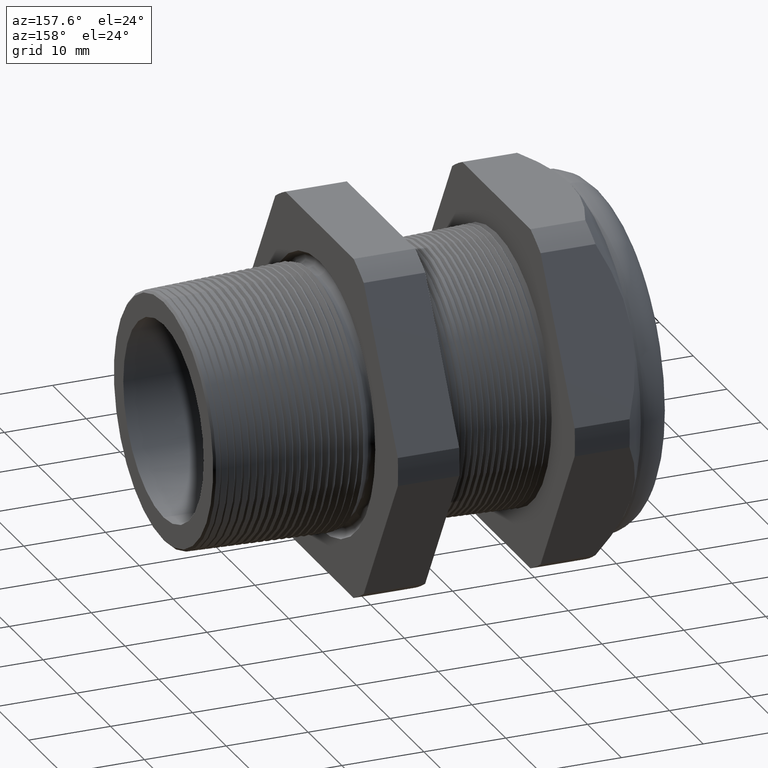
[diagram: clean part render]
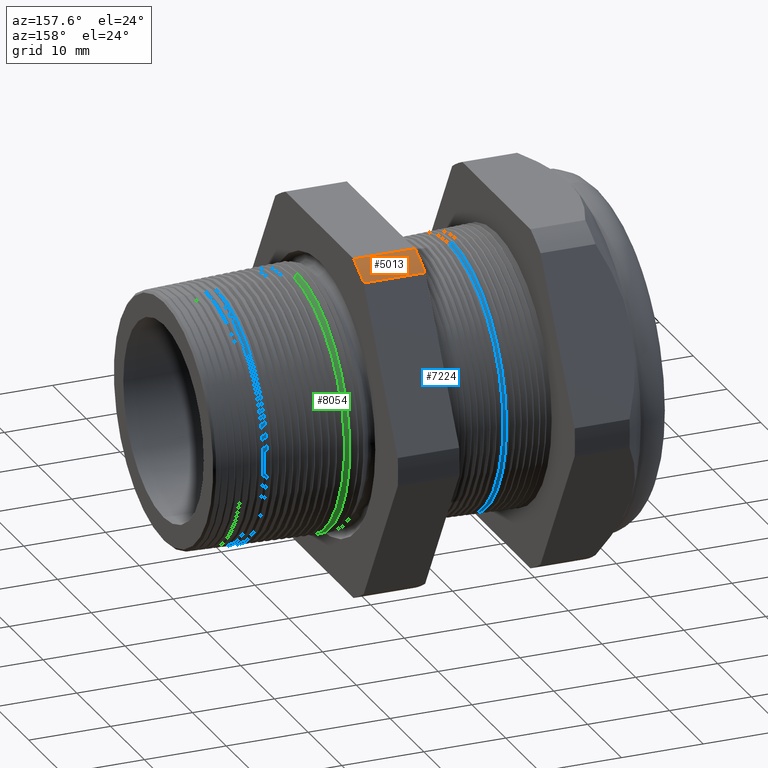
[diagram: same view with three faces highlighted in distinct colors, each labeled with its STEP entity id]
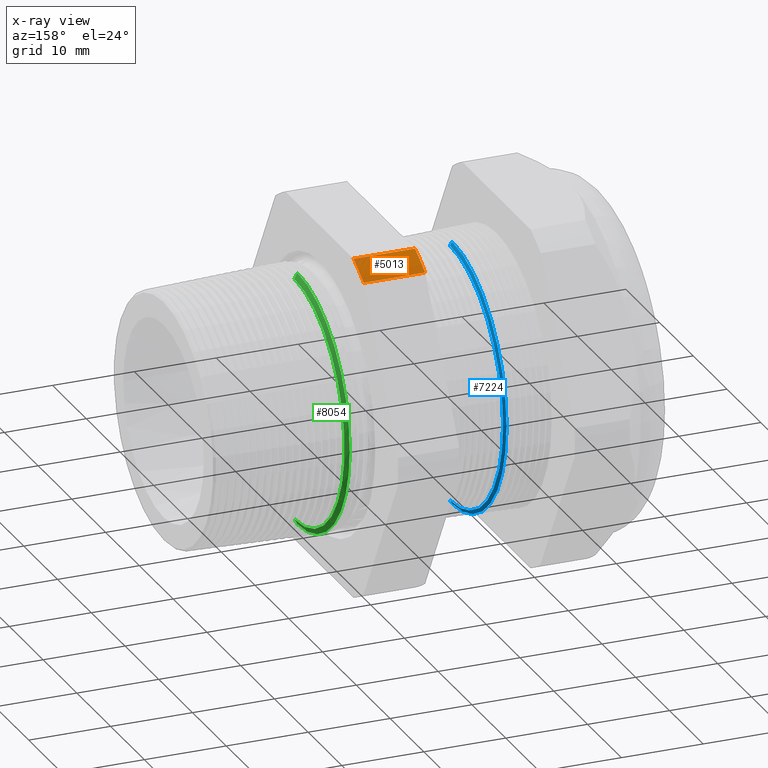
[diagram: x-ray of the same camera — body ghosted, the three highlighted faces saturated]
A machine part, auxiliary view with three faces highlighted in distinct colors.
The next image is the same camera in x-ray (body ghosted, the three faces saturated) — at least one of them is partly hidden behind the body in this view.
Their STEP definitions:

[orange] entity #5013 — the highlighted cylindrical surface (partial cylindrical patch) has radius 23.26 mm, axis along (-1, 0, 0).
#822 = CIRCLE ( 'NONE', #889, 0.9157500000000000600 ) ;
#885 = CARTESIAN_POINT ( 'NONE',  ( -0.3100000000000000000, 0.3974582525247153400, 0.8249999999999998400 ) ) ;
#886 = DIRECTION ( 'NONE',  ( 0.0000000000000000000, 0.0000000000000000000, -1.000000000000000000 ) ) ;
#887 = DIRECTION ( 'NONE',  ( 1.000000000000000000, 0.0000000000000000000, 0.0000000000000000000 ) ) ;
#888 = CARTESIAN_POINT ( 'NONE',  ( -0.3100000000000000000, 0.0000000000000000000, 0.0000000000000000000 ) ) ;
#889 = AXIS2_PLACEMENT_3D ( 'NONE', #888, #887, #886 ) ;
#892 = DIRECTION ( 'NONE',  ( -1.000000000000000000, 0.0000000000000000000, 0.0000000000000000000 ) ) ;
#893 = CARTESIAN_POINT ( 'NONE',  ( -0.3100000000000000000, 0.5157418318598044900, 0.7567089436301736000 ) ) ;
#1017 = CARTESIAN_POINT ( 'NONE',  ( -0.6052755905511810800, 0.5157418318598044900, 0.7567089436301736000 ) ) ;
#1125 = DIRECTION ( 'NONE',  ( 0.0000000000000000000, 0.0000000000000000000, 1.000000000000000000 ) ) ;
#1126 = DIRECTION ( 'NONE',  ( -1.000000000000000000, 0.0000000000000000000, 0.0000000000000000000 ) ) ;
#1127 = CARTESIAN_POINT ( 'NONE',  ( -0.6052755905511810800, 0.0000000000000000000, 0.0000000000000000000 ) ) ;
#1128 = AXIS2_PLACEMENT_3D ( 'NONE', #1127, #1126, #1125 ) ;
#1129 = CIRCLE ( 'NONE', #1128, 0.9157500000000000600 ) ;
#1131 = CARTESIAN_POINT ( 'NONE',  ( -0.6052755905511810800, 0.3974582525247153400, 0.8249999999999998400 ) ) ;
#1143 = FACE_OUTER_BOUND ( 'NONE', #5014, .T. ) ;
#1145 = DIRECTION ( 'NONE',  ( 0.0000000000000000000, 0.0000000000000000000, 1.000000000000000000 ) ) ;
#1146 = DIRECTION ( 'NONE',  ( -1.000000000000000000, 0.0000000000000000000, 0.0000000000000000000 ) ) ;
#1147 = VECTOR ( 'NONE', #1146, 39.37007874015748100 ) ;
#1148 = CARTESIAN_POINT ( 'NONE',  ( 0.4399999999999999500, 0.5157418318598044900, 0.7567089436301736000 ) ) ;
#1149 = LINE ( 'NONE', #1148, #1147 ) ;
#1204 = DIRECTION ( 'NONE',  ( -1.000000000000000000, 0.0000000000000000000, 0.0000000000000000000 ) ) ;
#1205 = VECTOR ( 'NONE', #1204, 39.37007874015748100 ) ;
#1206 = CARTESIAN_POINT ( 'NONE',  ( 0.4399999999999999500, 0.3974582525247153400, 0.8249999999999998400 ) ) ;
#1207 = LINE ( 'NONE', #1206, #1205 ) ;
#4834 = EDGE_CURVE ( 'NONE', #4863, #4835, #822, .T. ) ;
#4835 = VERTEX_POINT ( 'NONE', #885 ) ;
#4863 = VERTEX_POINT ( 'NONE', #893 ) ;
#4926 = VERTEX_POINT ( 'NONE', #1017 ) ;
#4984 = VERTEX_POINT ( 'NONE', #1131 ) ;
#4986 = EDGE_CURVE ( 'NONE', #4984, #4926, #1129, .T. ) ;
#5011 = EDGE_CURVE ( 'NONE', #4863, #4926, #1149, .T. ) ;
#5013 = ADVANCED_FACE ( 'NONE', ( #1143 ), #7009, .T. ) ;
#5014 = EDGE_LOOP ( 'NONE', ( #5015, #5016, #5017, #5019 ) ) ;
#5015 = ORIENTED_EDGE ( 'NONE', *, *, #5011, .T. ) ;
#5016 = ORIENTED_EDGE ( 'NONE', *, *, #4986, .F. ) ;
#5017 = ORIENTED_EDGE ( 'NONE', *, *, #5018, .F. ) ;
#5018 = EDGE_CURVE ( 'NONE', #4835, #4984, #1207, .T. ) ;
#5019 = ORIENTED_EDGE ( 'NONE', *, *, #4834, .F. ) ;
#6506 = AXIS2_PLACEMENT_3D ( 'NONE', #6761, #892, #1145 ) ;
#6761 = CARTESIAN_POINT ( 'NONE',  ( 0.4399999999999999500, 0.0000000000000000000, 0.0000000000000000000 ) ) ;
#7009 = CYLINDRICAL_SURFACE ( 'NONE', #6506, 0.9157500000000000600 ) ;

[blue] entity #7224 — the highlighted conical surface has half-angle 62 deg.
#2637 = CARTESIAN_POINT ( 'NONE',  ( -0.9367624839723557300, 0.0000000000000000000, 0.6195114984791282300 ) ) ;
#2672 = DIRECTION ( 'NONE',  ( 0.0000000000000000000, 0.0000000000000000000, -1.000000000000000000 ) ) ;
#2673 = DIRECTION ( 'NONE',  ( 1.000000000000000000, 0.0000000000000000000, 0.0000000000000000000 ) ) ;
#2674 = CARTESIAN_POINT ( 'NONE',  ( -0.9367624839723557300, 0.0000000000000000000, 0.0000000000000000000 ) ) ;
#2675 = AXIS2_PLACEMENT_3D ( 'NONE', #2674, #2673, #2672 ) ;
#2676 = CIRCLE ( 'NONE', #2675, 0.6195114984791282300 ) ;
#2677 = CARTESIAN_POINT ( 'NONE',  ( -0.9367624839723557300, 7.697146370492885500E-017, -0.6195114984791282300 ) ) ;
#2694 = DIRECTION ( 'NONE',  ( -0.4694715627859001900, 0.0000000000000000000, 0.8829475928589217700 ) ) ;
#2695 = VECTOR ( 'NONE', #2694, 39.37007874015748900 ) ;
#2696 = CARTESIAN_POINT ( 'NONE',  ( -0.9503149606299216000, 0.0000000000000000000, 0.6449999999999999100 ) ) ;
#2697 = LINE ( 'NONE', #2696, #2695 ) ;
#2698 = CARTESIAN_POINT ( 'NONE',  ( -0.9463419738687822700, 0.0000000000000000000, 0.6375278986518550000 ) ) ;
#2699 = DIRECTION ( 'NONE',  ( -0.4694715627859001900, 1.081298943409538900E-016, -0.8829475928589217700 ) ) ;
#2700 = VECTOR ( 'NONE', #2699, 39.37007874015748900 ) ;
#2701 = CARTESIAN_POINT ( 'NONE',  ( -0.9503149606299216000, 7.898971854500428000E-017, -0.6449999999999999100 ) ) ;
#2702 = LINE ( 'NONE', #2701, #2700 ) ;
#2703 = CARTESIAN_POINT ( 'NONE',  ( -0.9463419738687822700, 7.809382389193860100E-017, -0.6375278986518550000 ) ) ;
#2704 = DIRECTION ( 'NONE',  ( 0.0000000000000000000, 0.0000000000000000000, 1.000000000000000000 ) ) ;
#2705 = DIRECTION ( 'NONE',  ( 1.000000000000000000, 0.0000000000000000000, 0.0000000000000000000 ) ) ;
#2706 = CARTESIAN_POINT ( 'NONE',  ( -0.9463419738687822700, 0.0000000000000000000, 0.0000000000000000000 ) ) ;
#2707 = AXIS2_PLACEMENT_3D ( 'NONE', #2706, #2705, #2704 ) ;
#2708 = CIRCLE ( 'NONE', #2707, 0.6375278986518550000 ) ;
#2738 = DIRECTION ( 'NONE',  ( 0.0000000000000000000, 0.0000000000000000000, 1.000000000000000000 ) ) ;
#2739 = DIRECTION ( 'NONE',  ( -1.000000000000000000, 0.0000000000000000000, 0.0000000000000000000 ) ) ;
#2740 = AXIS2_PLACEMENT_3D ( 'NONE', #2742, #2739, #2738 ) ;
#2742 = CARTESIAN_POINT ( 'NONE',  ( -0.9503149606299216000, 0.0000000000000000000, 0.0000000000000000000 ) ) ;
#2743 = CONICAL_SURFACE ( 'NONE', #2740, 0.6449999999999999100, 1.082104136236473600 ) ;
#2744 = FACE_OUTER_BOUND ( 'NONE', #7213, .T. ) ;
#7170 = VERTEX_POINT ( 'NONE', #2637 ) ;
#7186 = VERTEX_POINT ( 'NONE', #2677 ) ;
#7188 = EDGE_CURVE ( 'NONE', #7186, #7170, #2676, .T. ) ;
#7206 = EDGE_CURVE ( 'NONE', #7207, #7210, #2708, .T. ) ;
#7207 = VERTEX_POINT ( 'NONE', #2703 ) ;
#7209 = EDGE_CURVE ( 'NONE', #7186, #7207, #2702, .T. ) ;
#7210 = VERTEX_POINT ( 'NONE', #2698 ) ;
#7211 = EDGE_CURVE ( 'NONE', #7170, #7210, #2697, .T. ) ;
#7212 = ORIENTED_EDGE ( 'NONE', *, *, #7209, .T. ) ;
#7213 = EDGE_LOOP ( 'NONE', ( #7214, #7212, #7217, #7216 ) ) ;
#7214 = ORIENTED_EDGE ( 'NONE', *, *, #7188, .F. ) ;
#7216 = ORIENTED_EDGE ( 'NONE', *, *, #7211, .F. ) ;
#7217 = ORIENTED_EDGE ( 'NONE', *, *, #7206, .T. ) ;
#7224 = ADVANCED_FACE ( 'NONE', ( #2744 ), #2743, .T. ) ;

[green] entity #8054 — the highlighted conical surface has half-angle 62 deg.
#4 = VERTEX_POINT ( 'NONE', #5811 ) ;
#11 = VERTEX_POINT ( 'NONE', #5859 ) ;
#21 = EDGE_CURVE ( 'NONE', #11, #4, #5851, .T. ) ;
#52 = VERTEX_POINT ( 'NONE', #5908 ) ;
#53 = EDGE_CURVE ( 'NONE', #4, #52, #5907, .T. ) ;
#54 = ORIENTED_EDGE ( 'NONE', *, *, #53, .F. ) ;
#55 = EDGE_CURVE ( 'NONE', #59, #52, #5967, .T. ) ;
#58 = ORIENTED_EDGE ( 'NONE', *, *, #55, .T. ) ;
#59 = VERTEX_POINT ( 'NONE', #5962 ) ;
#60 = EDGE_CURVE ( 'NONE', #11, #59, #5961, .T. ) ;
#61 = ORIENTED_EDGE ( 'NONE', *, *, #60, .T. ) ;
#4301 = DIRECTION ( 'NONE',  ( 0.0000000000000000000, 0.0000000000000000000, 1.000000000000000000 ) ) ;
#4302 = DIRECTION ( 'NONE',  ( -1.000000000000000000, 0.0000000000000000000, 0.0000000000000000000 ) ) ;
#4303 = AXIS2_PLACEMENT_3D ( 'NONE', #4312, #4302, #4301 ) ;
#4305 = CONICAL_SURFACE ( 'NONE', #4303, 0.6153063472644639800, 1.082104136236471400 ) ;
#4306 = FACE_OUTER_BOUND ( 'NONE', #8052, .T. ) ;
#4312 = CARTESIAN_POINT ( 'NONE',  ( -0.2049999999999999600, 0.0000000000000000000, 0.0000000000000000000 ) ) ;
#5811 = CARTESIAN_POINT ( 'NONE',  ( -0.1887370280109210400, 0.0000000000000000000, 0.5847201454394180800 ) ) ;
#5847 = DIRECTION ( 'NONE',  ( 0.0000000000000000000, 0.0000000000000000000, -1.000000000000000000 ) ) ;
#5848 = DIRECTION ( 'NONE',  ( 1.000000000000000000, 0.0000000000000000000, 0.0000000000000000000 ) ) ;
#5849 = CARTESIAN_POINT ( 'NONE',  ( -0.1887370280109210400, 0.0000000000000000000, 0.0000000000000000000 ) ) ;
#5850 = AXIS2_PLACEMENT_3D ( 'NONE', #5849, #5848, #5847 ) ;
#5851 = CIRCLE ( 'NONE', #5850, 0.5847201454394180800 ) ;
#5859 = CARTESIAN_POINT ( 'NONE',  ( -0.1887370280109210400, 7.325166303411895000E-017, -0.5847201454394180800 ) ) ;
#5904 = DIRECTION ( 'NONE',  ( -0.4694715627859021900, 0.0000000000000000000, 0.8829475928589208800 ) ) ;
#5905 = VECTOR ( 'NONE', #5904, 39.37007874015748100 ) ;
#5906 = CARTESIAN_POINT ( 'NONE',  ( -0.2049999999999999600, 0.0000000000000000000, 0.6153063472644639800 ) ) ;
#5907 = LINE ( 'NONE', #5906, #5905 ) ;
#5908 = CARTESIAN_POINT ( 'NONE',  ( -0.2030135066194304100, 0.0000000000000000000, 0.6115702965903916400 ) ) ;
#5958 = DIRECTION ( 'NONE',  ( -0.4694715627859021900, 1.081298943409537900E-016, -0.8829475928589208800 ) ) ;
#5959 = VECTOR ( 'NONE', #5958, 39.37007874015748100 ) ;
#5960 = CARTESIAN_POINT ( 'NONE',  ( -0.2049999999999999600, 7.535329486724755800E-017, -0.6153063472644639800 ) ) ;
#5961 = LINE ( 'NONE', #5960, #5959 ) ;
#5962 = CARTESIAN_POINT ( 'NONE',  ( -0.2030135066194304100, 7.490401742681321800E-017, -0.6115702965903917500 ) ) ;
#5963 = DIRECTION ( 'NONE',  ( 0.0000000000000000000, 0.0000000000000000000, 1.000000000000000000 ) ) ;
#5964 = DIRECTION ( 'NONE',  ( 1.000000000000000000, 0.0000000000000000000, 0.0000000000000000000 ) ) ;
#5965 = CARTESIAN_POINT ( 'NONE',  ( -0.2030135066194304100, 0.0000000000000000000, 0.0000000000000000000 ) ) ;
#5966 = AXIS2_PLACEMENT_3D ( 'NONE', #5965, #5964, #5963 ) ;
#5967 = CIRCLE ( 'NONE', #5966, 0.6115702965903916400 ) ;
#8051 = ORIENTED_EDGE ( 'NONE', *, *, #21, .F. ) ;
#8052 = EDGE_LOOP ( 'NONE', ( #8051, #61, #58, #54 ) ) ;
#8054 = ADVANCED_FACE ( 'NONE', ( #4306 ), #4305, .T. ) ;